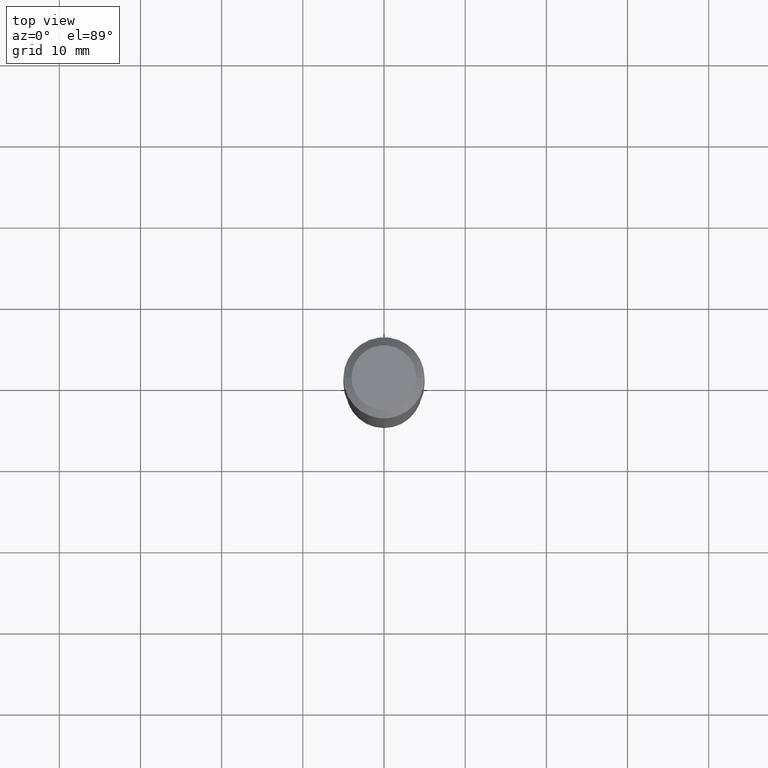
[diagram: clean part render]
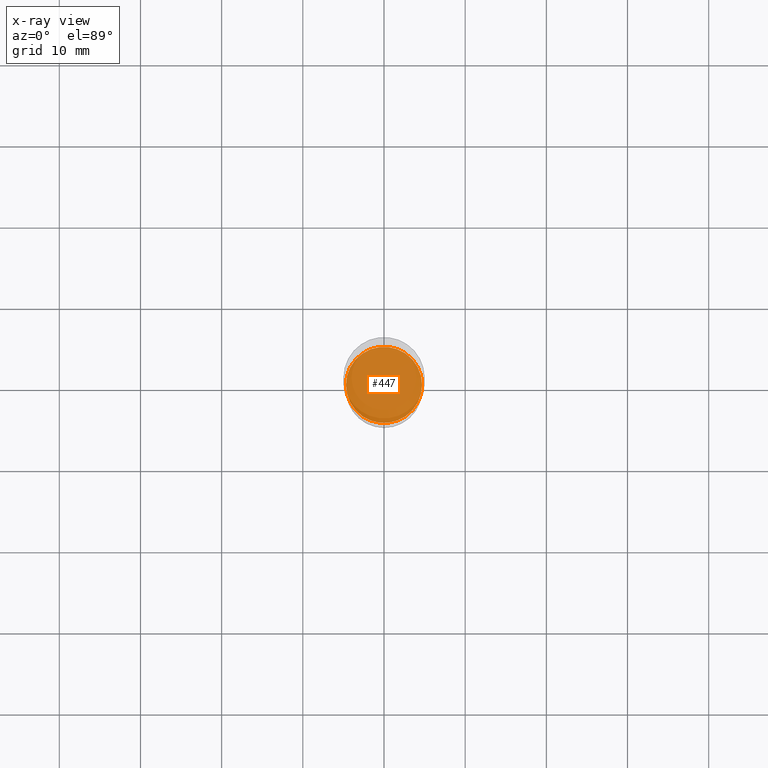
[diagram: x-ray — body ghosted, one internal face saturated and labeled with its STEP entity id]
A machine part, top view, then the same camera in x-ray: the body is ghosted and one INTERNAL B-rep face — a face not visible from any outside direction — is saturated and labeled: STEP entity #447.
In plain terms, the highlighted planar face has unit normal (-0, 0, 1).
Its self-contained STEP definition (entity closure, byte-faithful):
#4 = DIRECTION ( 'NONE',  ( -2.438088387897960049E-29, 3.491481338843145188E-15, 1.000000000000000000 ) ) ;
#8 = DIRECTION ( 'NONE',  ( 1.000000000000000000, -6.982962677686265922E-15, 4.876176775795935793E-29 ) ) ;
#23 = DIRECTION ( 'NONE',  ( 1.000000000000000000, -6.982962677686265922E-15, 0.000000000000000000 ) ) ;
#39 = VERTEX_POINT ( 'NONE', #400 ) ;
#43 = CARTESIAN_POINT ( 'NONE',  ( 4.948650676196241876E-29, -7.065361637282988500E-15, -2.023599999999999621 ) ) ;
#51 = DIRECTION ( 'NONE',  ( 1.000000000000000000, -6.982962677686265922E-15, 0.000000000000000000 ) ) ;
#67 = AXIS2_PLACEMENT_3D ( 'NONE', #127, #265, #51 ) ;
#91 = AXIS2_PLACEMENT_3D ( 'NONE', #43, #4, #8 ) ;
#93 = CARTESIAN_POINT ( 'NONE',  ( 0.1845499999999999363, -8.354067399449988978E-15, -2.023599999999999621 ) ) ;
#121 = EDGE_CURVE ( 'NONE', #39, #174, #199, .T. ) ;
#127 = CARTESIAN_POINT ( 'NONE',  ( 4.948650676196241876E-29, -7.065361637282988500E-15, -2.023599999999999621 ) ) ;
#174 = VERTEX_POINT ( 'NONE', #93 ) ;
#199 = CIRCLE ( 'NONE', #67, 0.1845499999999999363 ) ;
#211 = CARTESIAN_POINT ( 'NONE',  ( 4.948650676196241876E-29, -7.065361637282988500E-15, -2.023599999999999621 ) ) ;
#259 = AXIS2_PLACEMENT_3D ( 'NONE', #211, #444, #23 ) ;
#262 = EDGE_CURVE ( 'NONE', #174, #39, #402, .T. ) ;
#265 = DIRECTION ( 'NONE',  ( -2.445468806185136597E-29, 3.491481338843145583E-15, 1.000000000000000000 ) ) ;
#291 = ORIENTED_EDGE ( 'NONE', *, *, #121, .F. ) ;
#330 = PLANE ( 'NONE',  #91 ) ;
#371 = FACE_OUTER_BOUND ( 'NONE', #469, .T. ) ;
#400 = CARTESIAN_POINT ( 'NONE',  ( -0.1845499999999999363, -5.751405791263613253E-15, -2.023599999999999621 ) ) ;
#402 = CIRCLE ( 'NONE', #259, 0.1845499999999999363 ) ;
#437 = ORIENTED_EDGE ( 'NONE', *, *, #262, .F. ) ;
#444 = DIRECTION ( 'NONE',  ( -2.445468806185136597E-29, 3.491481338843145583E-15, 1.000000000000000000 ) ) ;
#447 = ADVANCED_FACE ( 'NONE', ( #371 ), #330, .F. ) ;
#469 = EDGE_LOOP ( 'NONE', ( #437, #291 ) ) ;